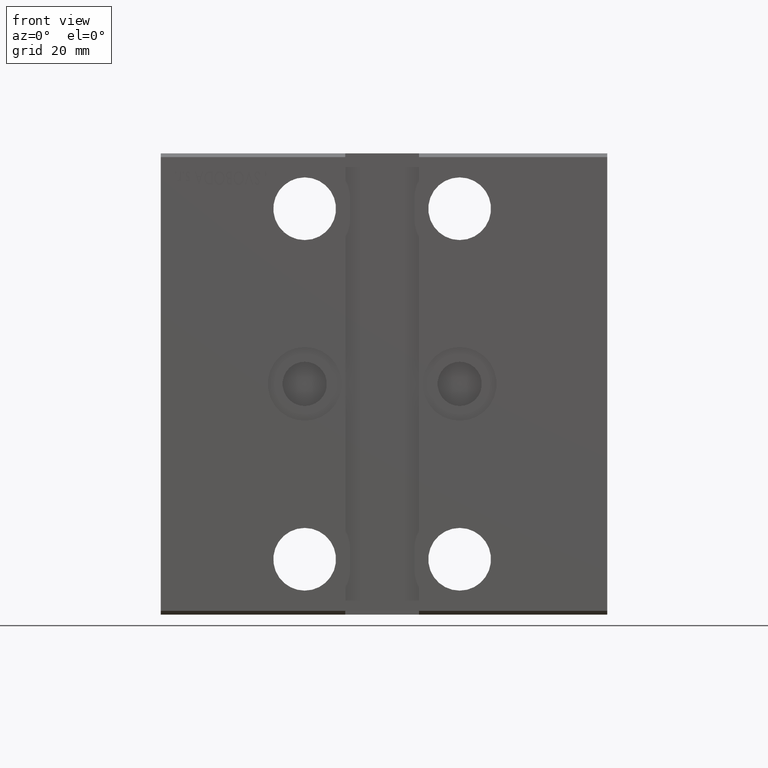
[diagram: clean part render]
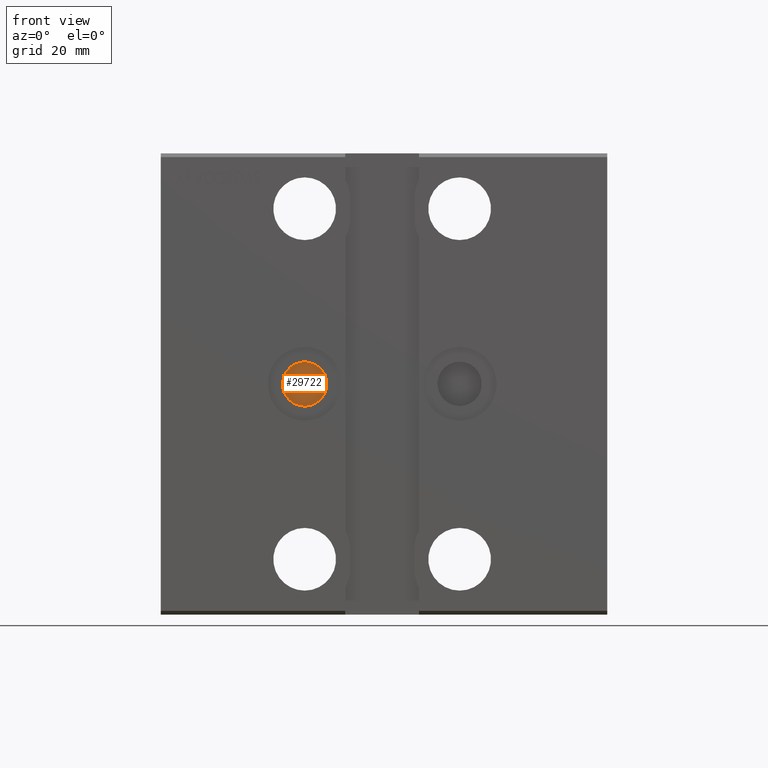
[diagram: same view with one face highlighted and labeled with its STEP entity id]
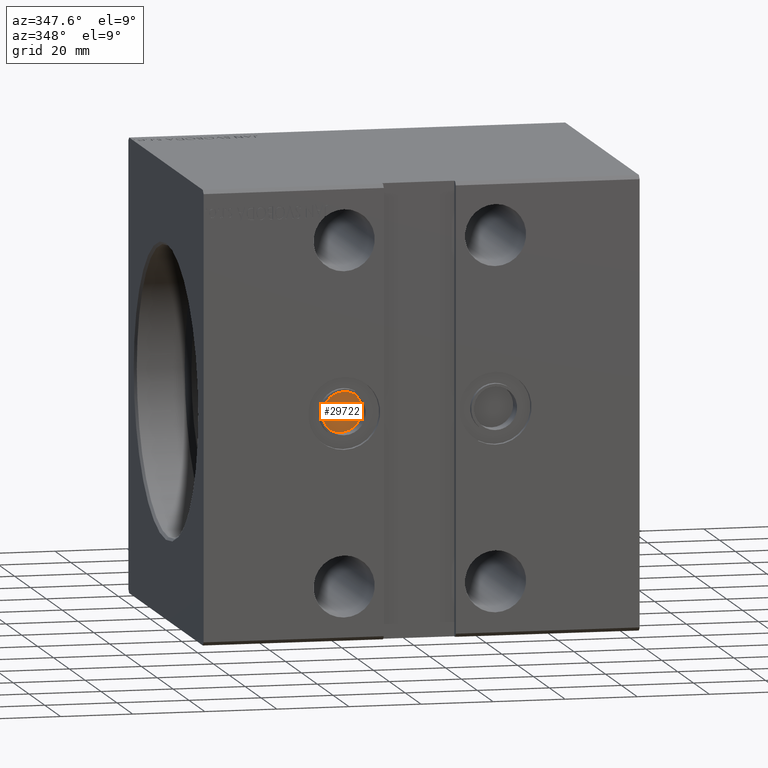
[diagram: same view with one face highlighted and labeled with its STEP entity id]
A machine part, front view. The second image highlights one B-rep face of the part: STEP entity #29722.
A second angle (auxiliary view) of the same face is appended — the face is thin or edge-on in the first view.
In plain terms, the highlighted planar face has unit normal (0, -1, -0).
Its self-contained STEP definition (entity closure, byte-faithful):
#2280 = EDGE_CURVE ( 'NONE', #21193, #35659, #36723, .T. ) ;
#2300 = CARTESIAN_POINT ( 'NONE',  ( 39.00000000000000000, -42.50000000000000711, 5.999999999999980460 ) ) ;
#2477 = CARTESIAN_POINT ( 'NONE',  ( 39.00000000000000000, -42.50000000000000711, -1.470250342086111776E-14 ) ) ;
#2829 = ORIENTED_EDGE ( 'NONE', *, *, #17319, .T. ) ;
#2986 = AXIS2_PLACEMENT_3D ( 'NONE', #33226, #16234, #19627 ) ;
#5669 = DIRECTION ( 'NONE',  ( 0.000000000000000000, 0.000000000000000000, -1.000000000000000000 ) ) ;
#7146 = FACE_OUTER_BOUND ( 'NONE', #39933, .T. ) ;
#15012 = CARTESIAN_POINT ( 'NONE',  ( 39.00000000000000000, -42.50000000000000711, -6.000000000000009770 ) ) ;
#16234 = DIRECTION ( 'NONE',  ( 0.000000000000000000, -1.000000000000000000, -5.507058653894625853E-17 ) ) ;
#16724 = DIRECTION ( 'NONE',  ( 0.000000000000000000, -1.000000000000000000, -5.507058653894625853E-17 ) ) ;
#17319 = EDGE_CURVE ( 'NONE', #35659, #21193, #34212, .T. ) ;
#19627 = DIRECTION ( 'NONE',  ( 0.000000000000000000, 0.000000000000000000, -1.000000000000000000 ) ) ;
#21193 = VERTEX_POINT ( 'NONE', #2300 ) ;
#22039 = DIRECTION ( 'NONE',  ( 0.000000000000000000, -1.000000000000000000, -5.507058653894625853E-17 ) ) ;
#23311 = CARTESIAN_POINT ( 'NONE',  ( 39.00000000000000000, -42.50000000000000711, -1.470250342086111776E-14 ) ) ;
#27055 = ORIENTED_EDGE ( 'NONE', *, *, #2280, .T. ) ;
#29722 = ADVANCED_FACE ( 'NONE', ( #7146 ), #33504, .T. ) ;
#33226 = CARTESIAN_POINT ( 'NONE',  ( 39.00000000000000000, -42.50000000000000711, -1.470250342086111776E-14 ) ) ;
#33504 = PLANE ( 'NONE',  #35929 ) ;
#34212 = CIRCLE ( 'NONE', #2986, 5.999999999999994671 ) ;
#35659 = VERTEX_POINT ( 'NONE', #15012 ) ;
#35929 = AXIS2_PLACEMENT_3D ( 'NONE', #23311, #16724, #39662 ) ;
#36723 = CIRCLE ( 'NONE', #40796, 5.999999999999994671 ) ;
#39662 = DIRECTION ( 'NONE',  ( 0.000000000000000000, 5.507058653894625853E-17, -1.000000000000000000 ) ) ;
#39933 = EDGE_LOOP ( 'NONE', ( #2829, #27055 ) ) ;
#40796 = AXIS2_PLACEMENT_3D ( 'NONE', #2477, #22039, #5669 ) ;